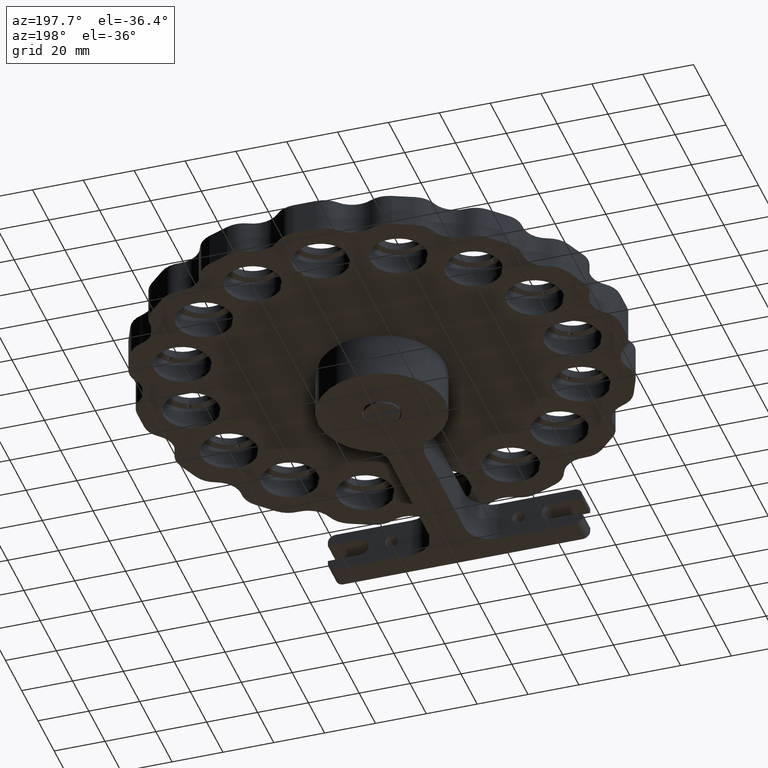
[diagram: clean part render]
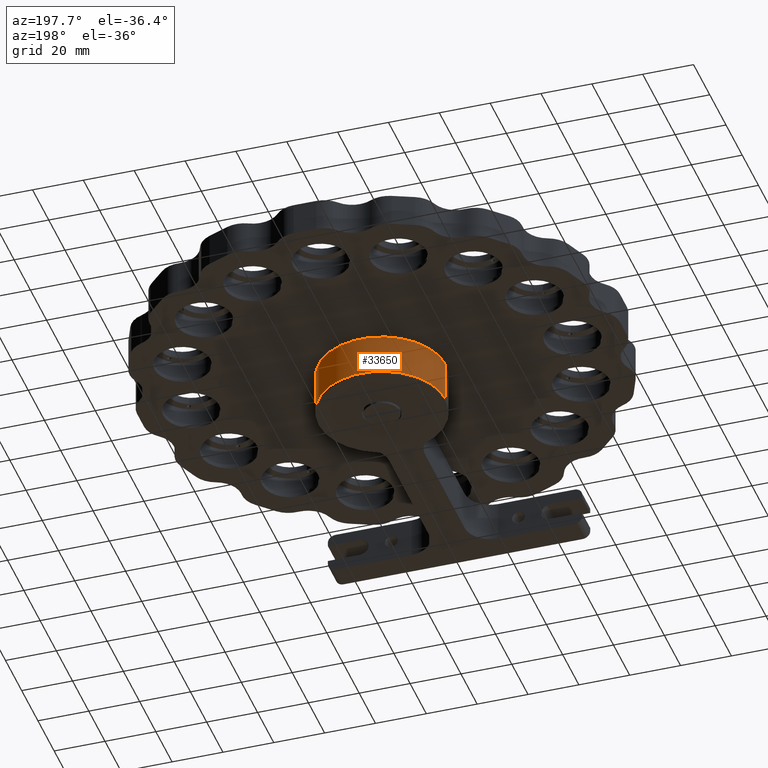
[diagram: same view with one face highlighted and labeled with its STEP entity id]
A machine part, auxiliary view. The second image highlights one B-rep face of the part: STEP entity #33650.
In plain terms, the highlighted cylindrical surface (partial cylindrical patch) has radius 25 mm, axis along (0, 0, 1).
Its self-contained STEP definition (entity closure, byte-faithful):
#828 = DIRECTION ( 'NONE',  ( 1.000000000000000000, 0.0000000000000000000, 0.0000000000000000000 ) ) ;
#1570 = CARTESIAN_POINT ( 'NONE',  ( -25.00000000000001400, 2.442039979583282200E-014, -16.00000000000000000 ) ) ;
#2462 = EDGE_CURVE ( 'NONE', #41674, #28534, #31817, .T. ) ;
#4336 = CYLINDRICAL_SURFACE ( 'NONE', #11484, 25.00000000000002800 ) ;
#5397 = ORIENTED_EDGE ( 'NONE', *, *, #2462, .F. ) ;
#5474 = AXIS2_PLACEMENT_3D ( 'NONE', #24089, #19880, #23560 ) ;
#9256 = EDGE_CURVE ( 'NONE', #35380, #10046, #41419, .T. ) ;
#10046 = VERTEX_POINT ( 'NONE', #38212 ) ;
#11484 = AXIS2_PLACEMENT_3D ( 'NONE', #27334, #35139, #20111 ) ;
#13664 = CARTESIAN_POINT ( 'NONE',  ( -25.00000000000001400, 2.442039979583282200E-014, -16.00000000000000000 ) ) ;
#14018 = DIRECTION ( 'NONE',  ( 0.0000000000000000000, 0.0000000000000000000, 1.000000000000000000 ) ) ;
#19880 = DIRECTION ( 'NONE',  ( -0.0000000000000000000, 0.0000000000000000000, 1.000000000000000000 ) ) ;
#20111 = DIRECTION ( 'NONE',  ( 1.000000000000000000, 0.0000000000000000000, 0.0000000000000000000 ) ) ;
#21153 = DIRECTION ( 'NONE',  ( -0.0000000000000000000, 0.0000000000000000000, 1.000000000000000000 ) ) ;
#23321 = CIRCLE ( 'NONE', #5474, 25.00000000000002800 ) ;
#23560 = DIRECTION ( 'NONE',  ( 1.000000000000000000, 0.0000000000000000000, 0.0000000000000000000 ) ) ;
#24089 = CARTESIAN_POINT ( 'NONE',  ( 1.431146867680865900E-014, 2.135878279796443700E-014, -16.00000000000000000 ) ) ;
#27008 = CIRCLE ( 'NONE', #50336, 25.00000000000002800 ) ;
#27334 = CARTESIAN_POINT ( 'NONE',  ( 1.431146867680865900E-014, 2.135878279796443700E-014, -16.00000000000000000 ) ) ;
#27471 = CARTESIAN_POINT ( 'NONE',  ( 25.00000000000004300, 2.135878279796443700E-014, -16.00000000000000000 ) ) ;
#27783 = EDGE_CURVE ( 'NONE', #28534, #10046, #27008, .T. ) ;
#28534 = VERTEX_POINT ( 'NONE', #44703 ) ;
#30698 = VECTOR ( 'NONE', #14018, 1000.000000000000000 ) ;
#31817 = LINE ( 'NONE', #38845, #34364 ) ;
#33650 = ADVANCED_FACE ( 'NONE', ( #46698 ), #4336, .T. ) ;
#34364 = VECTOR ( 'NONE', #42896, 1000.000000000000000 ) ;
#35139 = DIRECTION ( 'NONE',  ( 0.0000000000000000000, 0.0000000000000000000, 1.000000000000000000 ) ) ;
#35380 = VERTEX_POINT ( 'NONE', #1570 ) ;
#37007 = EDGE_LOOP ( 'NONE', ( #46433, #44076, #41882, #5397 ) ) ;
#38212 = CARTESIAN_POINT ( 'NONE',  ( -25.00000000000001400, 2.442039979583282200E-014, 0.0000000000000000000 ) ) ;
#38845 = CARTESIAN_POINT ( 'NONE',  ( 25.00000000000004300, 2.135878279796443700E-014, -16.00000000000000000 ) ) ;
#41419 = LINE ( 'NONE', #13664, #30698 ) ;
#41674 = VERTEX_POINT ( 'NONE', #27471 ) ;
#41882 = ORIENTED_EDGE ( 'NONE', *, *, #27783, .F. ) ;
#42896 = DIRECTION ( 'NONE',  ( 0.0000000000000000000, 0.0000000000000000000, 1.000000000000000000 ) ) ;
#44076 = ORIENTED_EDGE ( 'NONE', *, *, #9256, .T. ) ;
#44703 = CARTESIAN_POINT ( 'NONE',  ( 25.00000000000004300, 2.135878279796443700E-014, 0.0000000000000000000 ) ) ;
#46433 = ORIENTED_EDGE ( 'NONE', *, *, #46435, .T. ) ;
#46435 = EDGE_CURVE ( 'NONE', #41674, #35380, #23321, .T. ) ;
#46698 = FACE_OUTER_BOUND ( 'NONE', #37007, .T. ) ;
#49283 = CARTESIAN_POINT ( 'NONE',  ( 1.431146867680865900E-014, 2.135878279796443700E-014, 0.0000000000000000000 ) ) ;
#50336 = AXIS2_PLACEMENT_3D ( 'NONE', #49283, #21153, #828 ) ;